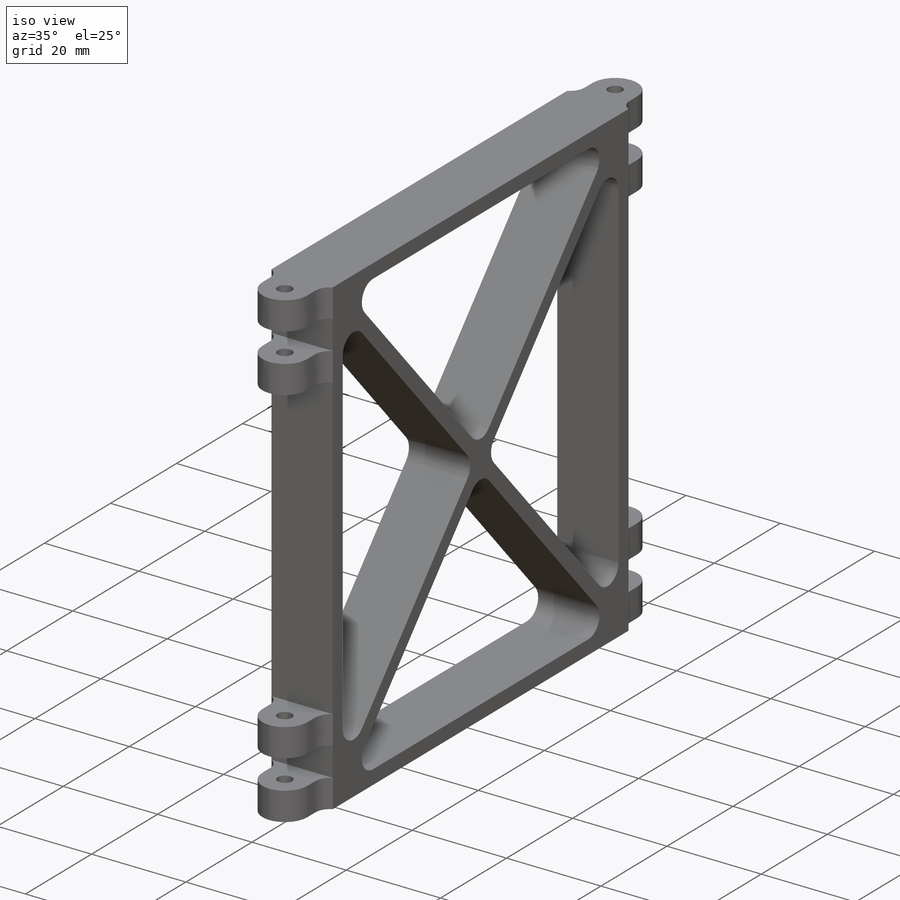
[diagram: iso view]
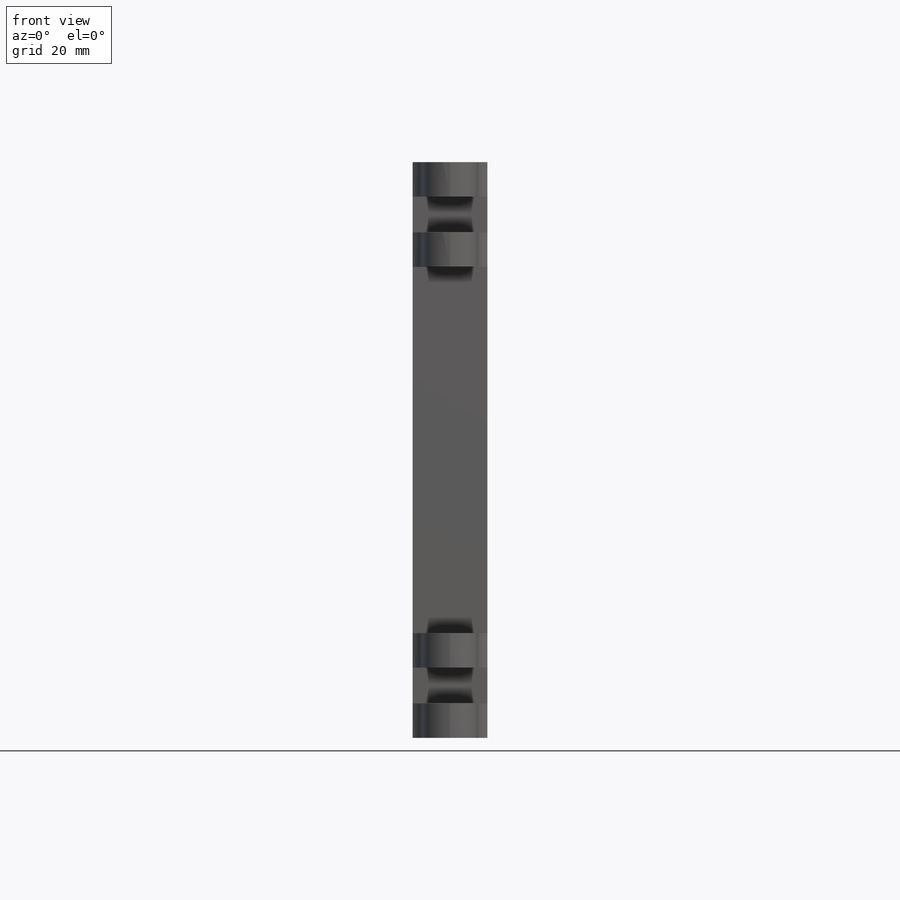
[diagram: front view]
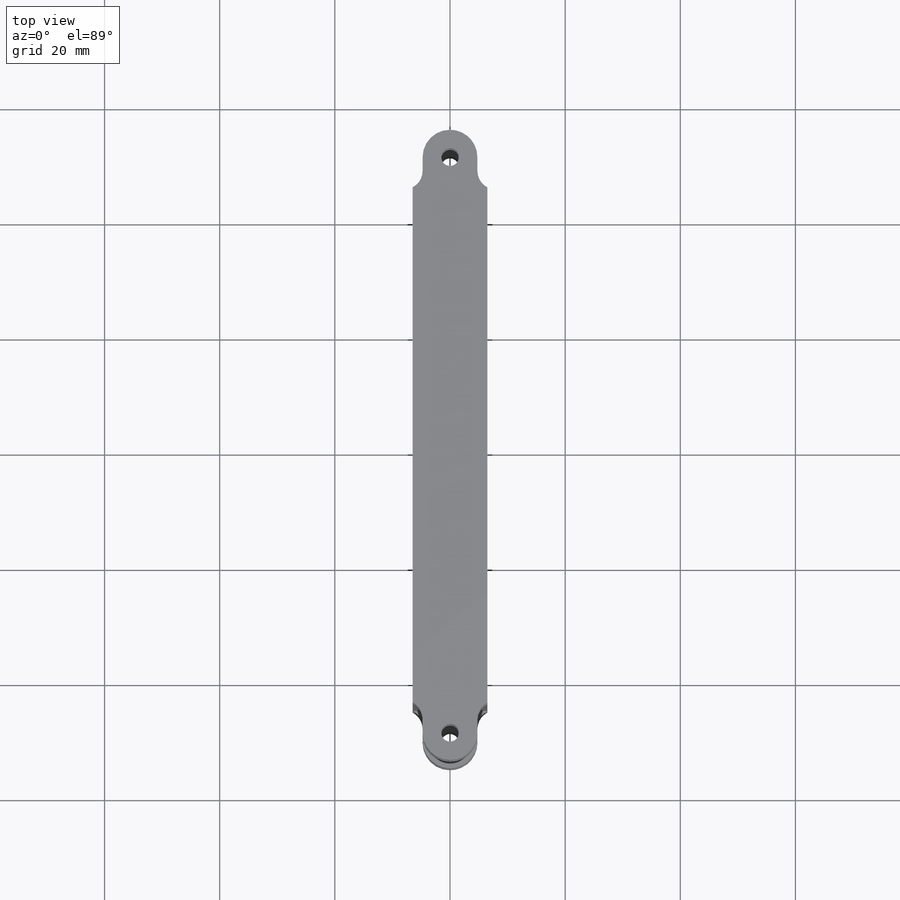
[diagram: top view]
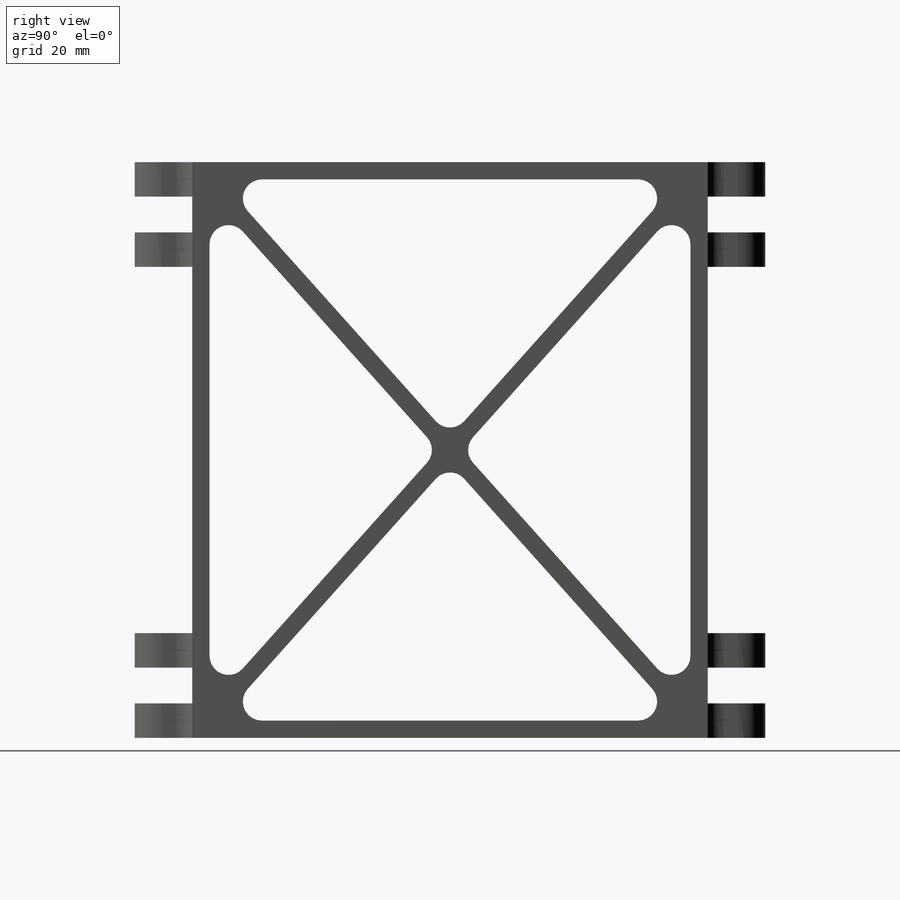
[diagram: right view]
SOLIDWORKS PART (.sldprt)
format: sldprt  version: not decoded by parser v0  size: 758,784 bytes
history: native  units: mm
features: sketch x8, cut_extrude x4, mirror x4, fillet x3, extrude x2, material x1, hole x1, boolean_combine x1 (+11 scaffold rows collapsed)
feature tree (35):
  scaffold x11  (default folders/planes/origin — collapsed)
  material  "6061 Alloy"
  sketch  "Sketch1"  dims[c1.D5=9.0mm c1.D3=120.0mm c1.D1=89.525mm c1.D2=100.0mm c2.D3=10.0mm c2.D4=78.0mm c3.D3=5.2375mm c3.D5=~15.383379mm c3.D1=100.0mm]
  extrude  "Boss-Extrude1"  Depth=13mm
  sketch  "Sketch4"  dims[D3=3.175mm D1=10.0mm D2=9.525mm]
  extrude  "hinge hole"  Depth=18.2mm
  hole  "#31 (0.12) Diameter Hole1"  Diameter=3.048mm Depth=18.2mm
  sketch  "3DSketch1"
  sketch  "Sketch6"  dims[hole-wizard template sketch: 60 standard entries collapsed; hole parameters kept: c18.Thru Hole Depth=18.2mm]
  sketch  "Sketch5"  dims[D1=6.2mm]
  cut_extrude  "Cut-Extrude1"  [1 undecoded]
  sketch  "Sketch7"  dims[D1=~3.18262mm]
  cut_extrude  "ream clearance"  [1 undecoded]
  sketch  "Sketch8"  dims[D1=~3.16738mm]
  cut_extrude  "ream interference"  [1 undecoded]
  mirror  "Mirror1"
  mirror  "Mirror2"
  boolean_combine  "Combine1"
  fillet  "Fillet3"  Radius=3.175mm
  fillet  "Fillet2"  Radius=4.7625mm
  sketch  "Sketch9"  dims[c1.D1=3.0mm c1.D2=~54.559789mm c2.D2=~179.059672deg c3.D2=~54.559789mm c4.D2=3.0deg c5.D2=3.0mm c5.D3=3.0mm c5.D4=3.0mm]
  cut_extrude  "Cut-Extrude2"  [1 undecoded]
  mirror  "Mirror3"
  mirror  "Mirror4"
  fillet  "Fillet4"  Radius=3.3mm
decode coverage: 13 of 23 modeling features carry decoded parameters
note: ~ marks probable driven/reference dimensions
note: 4 parameter values undecoded
summary: no parameter record found for 4 features
note: suppression state not decoded; provenance and decode notes live in map.json
